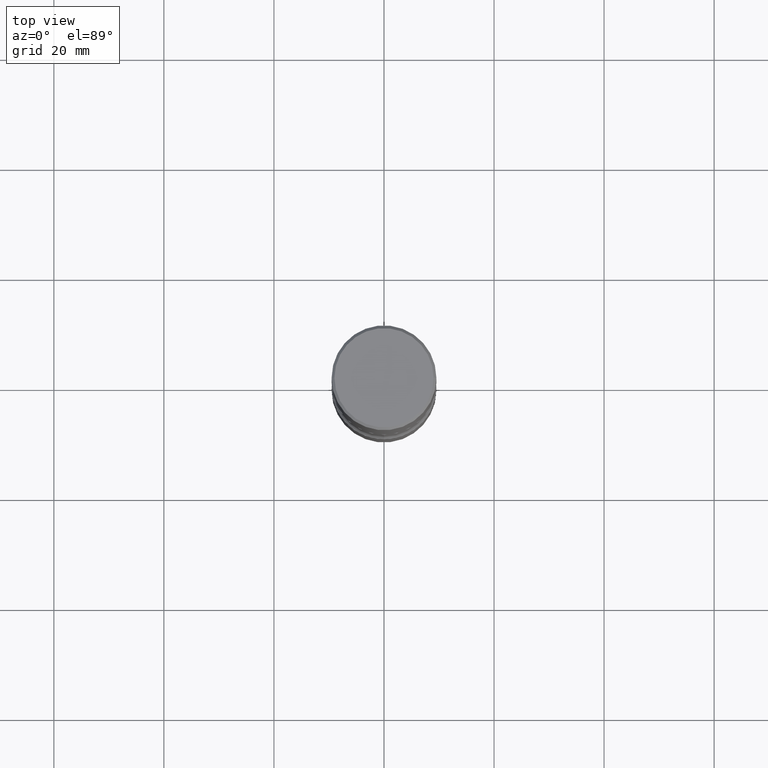
[diagram: clean part render]
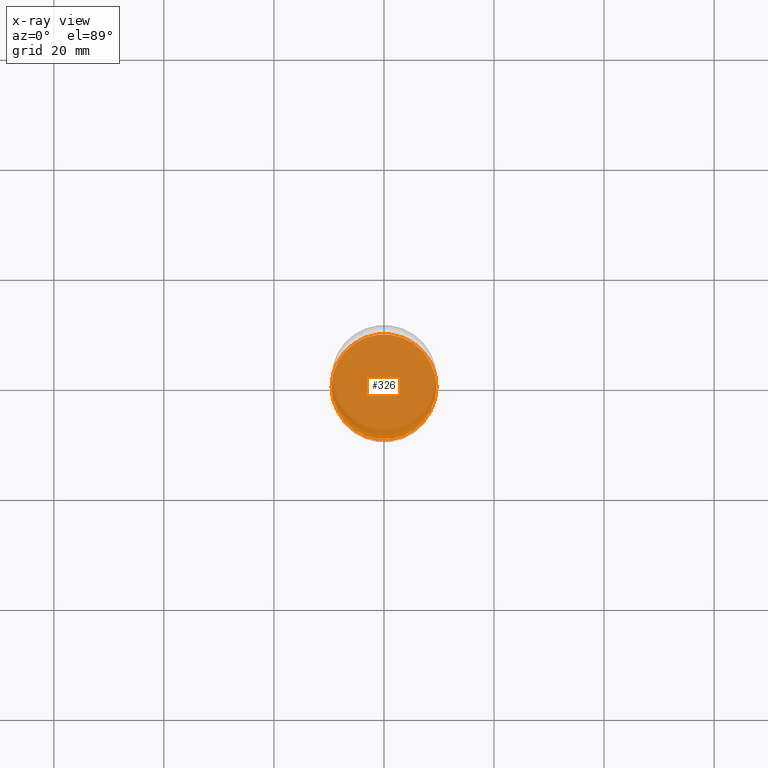
[diagram: x-ray — body ghosted, one internal face saturated and labeled with its STEP entity id]
A machine part, top view, then the same camera in x-ray: the body is ghosted and one INTERNAL B-rep face — a face not visible from any outside direction — is saturated and labeled: STEP entity #326.
In plain terms, the highlighted planar face has unit normal (0, -0, -1).
Its self-contained STEP definition (entity closure, byte-faithful):
#7 = CARTESIAN_POINT ( 'NONE',  ( 9.170508023194262238E-29, -1.309305502066179741E-14, -3.750000000000000000 ) ) ;
#8 = EDGE_LOOP ( 'NONE', ( #289, #327 ) ) ;
#25 = CARTESIAN_POINT ( 'NONE',  ( 9.170508023194262238E-29, -1.309305502066179741E-14, -3.750000000000000000 ) ) ;
#52 = AXIS2_PLACEMENT_3D ( 'NONE', #208, #388, #79 ) ;
#79 = DIRECTION ( 'NONE',  ( 1.000000000000000000, -6.982962677686265922E-15, 0.000000000000000000 ) ) ;
#114 = FACE_OUTER_BOUND ( 'NONE', #8, .T. ) ;
#123 = EDGE_CURVE ( 'NONE', #444, #178, #180, .T. ) ;
#141 = DIRECTION ( 'NONE',  ( -2.445468806185136597E-29, 3.491481338843145583E-15, 1.000000000000000000 ) ) ;
#178 = VERTEX_POINT ( 'NONE', #195 ) ;
#180 = CIRCLE ( 'NONE', #299, 0.3750000000000001110 ) ;
#195 = CARTESIAN_POINT ( 'NONE',  ( 0.3750000000000001110, -1.571166602479414743E-14, -3.750000000000000000 ) ) ;
#208 = CARTESIAN_POINT ( 'NONE',  ( 9.170508023194262238E-29, -1.309305502066179741E-14, -3.750000000000000000 ) ) ;
#217 = CARTESIAN_POINT ( 'NONE',  ( -0.3750000000000001110, -1.272416874185078647E-14, -3.750000000000000000 ) ) ;
#241 = PLANE ( 'NONE',  #543 ) ;
#250 = DIRECTION ( 'NONE',  ( -1.000000000000000000, 6.982962677686265922E-15, -4.876176775795935793E-29 ) ) ;
#267 = DIRECTION ( 'NONE',  ( 1.000000000000000000, -6.982962677686265922E-15, 0.000000000000000000 ) ) ;
#289 = ORIENTED_EDGE ( 'NONE', *, *, #336, .T. ) ;
#299 = AXIS2_PLACEMENT_3D ( 'NONE', #7, #141, #267 ) ;
#326 = ADVANCED_FACE ( 'NONE', ( #114 ), #241, .F. ) ;
#327 = ORIENTED_EDGE ( 'NONE', *, *, #123, .T. ) ;
#336 = EDGE_CURVE ( 'NONE', #178, #444, #508, .T. ) ;
#337 = DIRECTION ( 'NONE',  ( 2.438088387897960049E-29, -3.491481338843145188E-15, -1.000000000000000000 ) ) ;
#388 = DIRECTION ( 'NONE',  ( -2.445468806185136597E-29, 3.491481338843145583E-15, 1.000000000000000000 ) ) ;
#444 = VERTEX_POINT ( 'NONE', #217 ) ;
#508 = CIRCLE ( 'NONE', #52, 0.3750000000000001110 ) ;
#543 = AXIS2_PLACEMENT_3D ( 'NONE', #25, #337, #250 ) ;